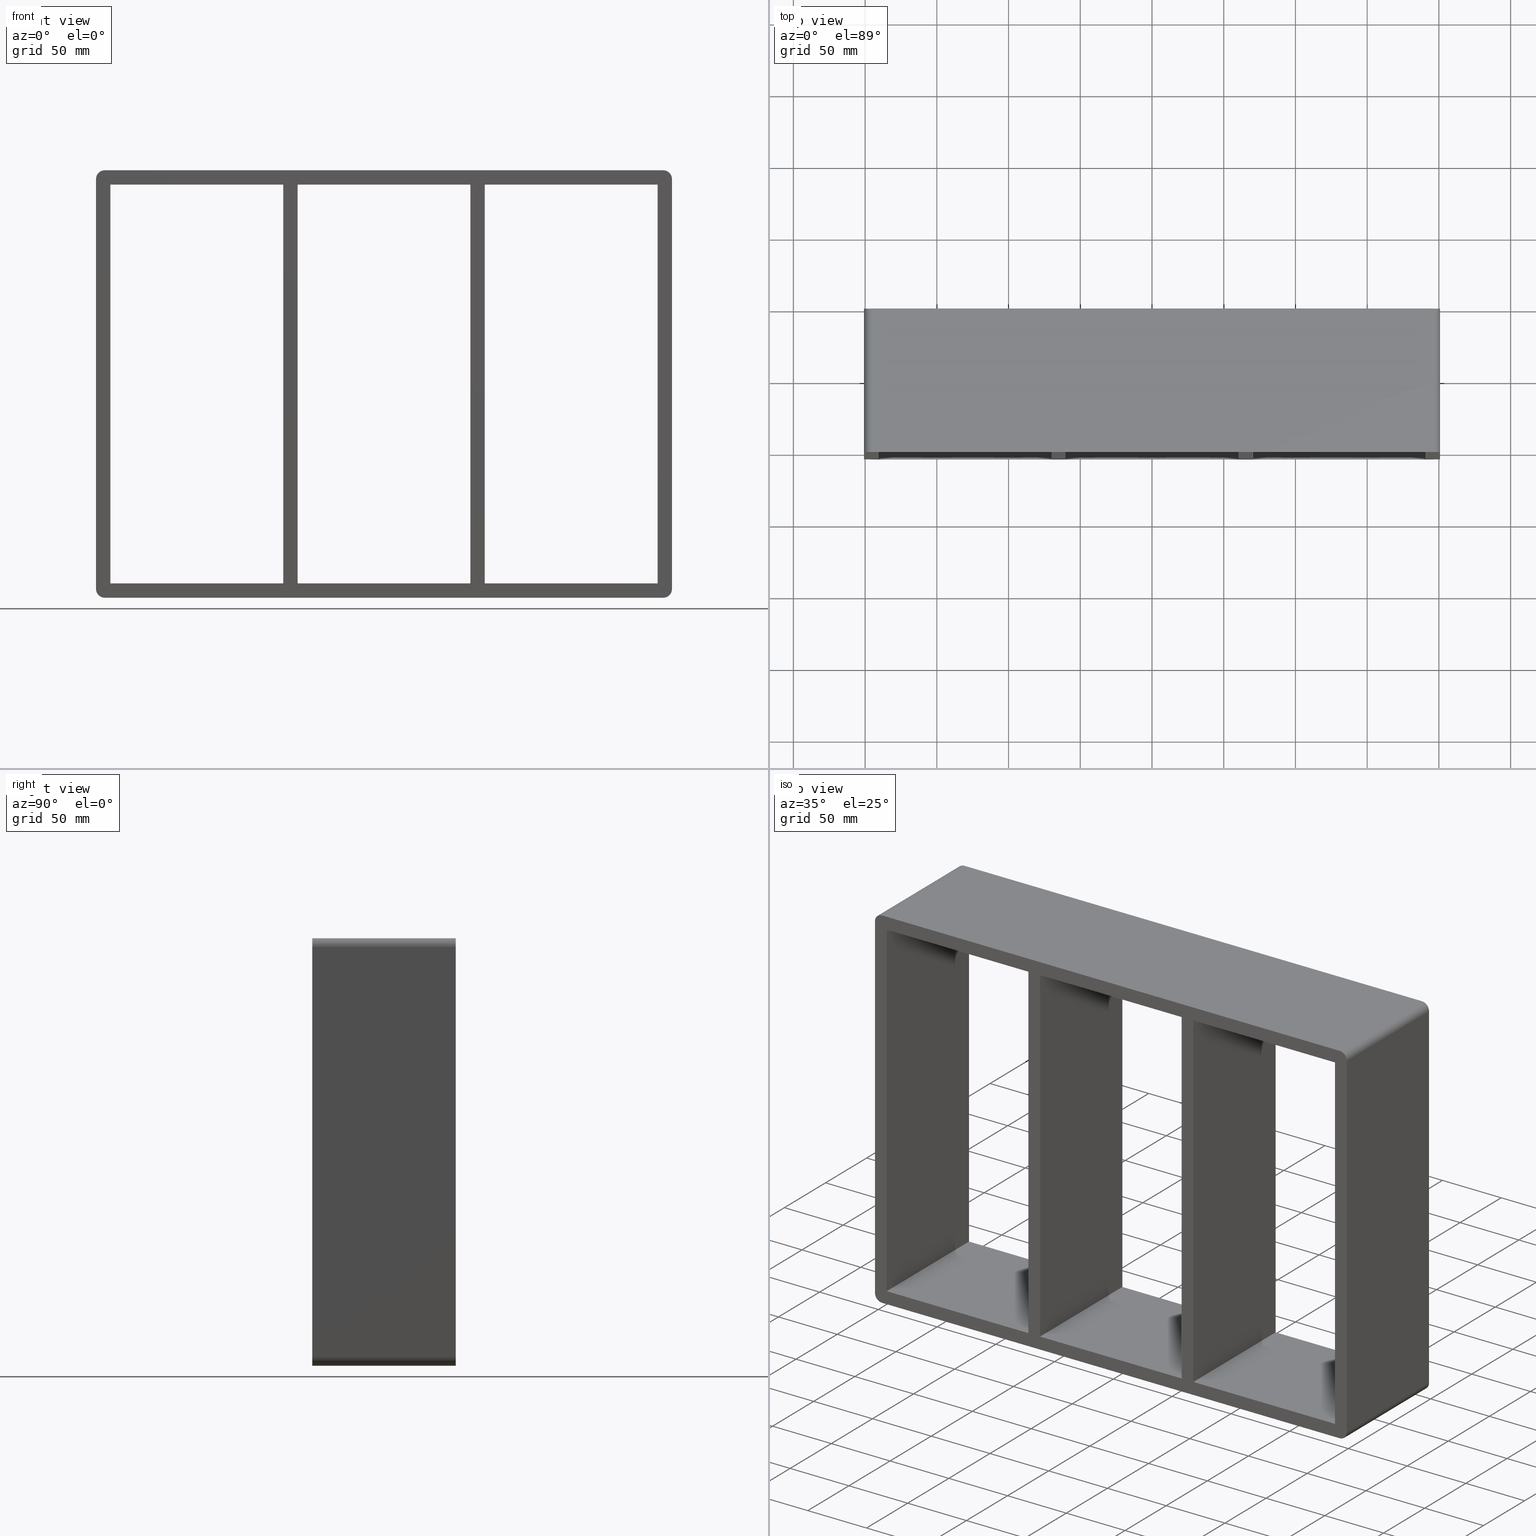
[diagram: canonical four-view strip — front | top / right | iso, engineering-drawing reading convention]
A machine part, canonical four-view strip (front | top / right | iso — engineering-drawing reading convention). The complete STEP part file that produces these views, byte-faithful:
ISO-10303-21;
HEADER;
/****************************************************************
 * Generated by software with PDElib inside                    *
 * PDElib Version v51a, created Wed 11/30/2011                  *
 * ITI Transcendata (http://www.transcendata.com/)              *
 ****************************************************************/
FILE_DESCRIPTION((''),'2;1');
FILE_NAME('C:\\RoxtecConfigurator\\CreatedFiles\\STEP\\SK8X3.stp','2013-01-29T16:25:01',(''),(''),'Autodesk Inventor 2013','Autodesk Inventor 2013','');
FILE_SCHEMA(('AUTOMOTIVE_DESIGN { 1 0 10303 214 1 1 1 1 }'));
ENDSEC;
DATA;
#5=APPLICATION_CONTEXT('automotive design');
#6=APPLICATION_PROTOCOL_DEFINITION('International Standard','automotive_design',2001,#5);
#7=PRODUCT_CONTEXT('',#5,'mechanical');
#8=PRODUCT('roxtec S_SF_G','roxtec S_SF_G',$,(#7));
#9=PRODUCT_RELATED_PRODUCT_CATEGORY('part',$,(#8));
#10=PRODUCT_DEFINITION_FORMATION('',$,#8);
#11=PRODUCT_DEFINITION_CONTEXT('part definition',#5,'design');
#12=PRODUCT_DEFINITION('',$,#10,#11);
#18=(NAMED_UNIT(*)PLANE_ANGLE_UNIT()SI_UNIT($,.RADIAN.));
#19=DIMENSIONAL_EXPONENTS(0.0,0.0,0.0,0.0,0.0,0.0,0.0);
#20=PLANE_ANGLE_MEASURE_WITH_UNIT(PLANE_ANGLE_MEASURE(0.0174532925),#18);
#24=(CONVERSION_BASED_UNIT('DEGREE',#20)NAMED_UNIT(#19)PLANE_ANGLE_UNIT());
#28=(NAMED_UNIT(*)SI_UNIT($,.STERADIAN.)SOLID_ANGLE_UNIT());
#32=(LENGTH_UNIT()NAMED_UNIT(*)SI_UNIT(.MILLI.,.METRE.));
#34=UNCERTAINTY_MEASURE_WITH_UNIT(LENGTH_MEASURE(0.01),#32,'DISTANCE_ACCURACY_VALUE','');
#36=(GEOMETRIC_REPRESENTATION_CONTEXT(3)GLOBAL_UNCERTAINTY_ASSIGNED_CONTEXT((#34))GLOBAL_UNIT_ASSIGNED_CONTEXT((#24,#28,#32))REPRESENTATION_CONTEXT('None','None'));
#37=AXIS2_PLACEMENT_3D('',#38,#39,#40);
#38=CARTESIAN_POINT('',(0.0,0.0,0.0));
#39=DIRECTION('',(0.0,0.0,1.0));
#40=DIRECTION('',(1.0,0.0,0.0));
#41=SHAPE_REPRESENTATION('',(#37),#36);
#42=PRODUCT_DEFINITION_SHAPE('','',#12);
#43=SHAPE_DEFINITION_REPRESENTATION(#42,#41);
#49=(NAMED_UNIT(*)PLANE_ANGLE_UNIT()SI_UNIT($,.RADIAN.));
#50=DIMENSIONAL_EXPONENTS(0.0,0.0,0.0,0.0,0.0,0.0,0.0);
#51=PLANE_ANGLE_MEASURE_WITH_UNIT(PLANE_ANGLE_MEASURE(0.0174532925),#49);
#55=(CONVERSION_BASED_UNIT('DEGREE',#51)NAMED_UNIT(#50)PLANE_ANGLE_UNIT());
#59=(NAMED_UNIT(*)SI_UNIT($,.STERADIAN.)SOLID_ANGLE_UNIT());
#63=(LENGTH_UNIT()NAMED_UNIT(*)SI_UNIT(.MILLI.,.METRE.));
#65=UNCERTAINTY_MEASURE_WITH_UNIT(LENGTH_MEASURE(0.000001),#63,'DISTANCE_ACCURACY_VALUE','');
#67=(GEOMETRIC_REPRESENTATION_CONTEXT(3)GLOBAL_UNCERTAINTY_ASSIGNED_CONTEXT((#65))GLOBAL_UNIT_ASSIGNED_CONTEXT((#55,#59,#63))REPRESENTATION_CONTEXT('','3D'));
#68=CARTESIAN_POINT('',(60.24999999998407,-3.0,-139.0));
#69=DIRECTION('',(-1.0,0.0,0.0));
#70=DIRECTION('',(0.0,0.0,1.0));
#71=AXIS2_PLACEMENT_3D('',#68,#69,#70);
#72=PLANE('',#71);
#73=CARTESIAN_POINT('',(60.24999999998407,-3.0,-139.0));
#74=VERTEX_POINT('',#73);
#75=CARTESIAN_POINT('',(60.249999999983999,-3.0,139.0));
#76=VERTEX_POINT('',#75);
#77=CARTESIAN_POINT('',(60.24999999998407,-3.0,-139.0));
#78=DIRECTION('',(0.0,0.0,1.0));
#79=VECTOR('',#78,278.0);
#80=LINE('',#77,#79);
#81=EDGE_CURVE('',#74,#76,#80,.T.);
#82=ORIENTED_EDGE('',*,*,#81,.T.);
#83=CARTESIAN_POINT('',(60.249999999983999,97.0,139.0));
#84=VERTEX_POINT('',#83);
#85=CARTESIAN_POINT('',(60.249999999983999,97.0,139.0));
#86=DIRECTION('',(0.0,-1.0,0.0));
#87=VECTOR('',#86,100.0);
#88=LINE('',#85,#87);
#89=EDGE_CURVE('',#84,#76,#88,.T.);
#90=ORIENTED_EDGE('',*,*,#89,.F.);
#91=CARTESIAN_POINT('',(60.24999999998407,97.0,-139.0));
#92=VERTEX_POINT('',#91);
#93=CARTESIAN_POINT('',(60.24999999998407,97.0,-139.0));
#94=DIRECTION('',(0.0,0.0,1.0));
#95=VECTOR('',#94,278.0);
#96=LINE('',#93,#95);
#97=EDGE_CURVE('',#92,#84,#96,.T.);
#98=ORIENTED_EDGE('',*,*,#97,.F.);
#99=CARTESIAN_POINT('',(60.24999999998407,-3.0,-139.0));
#100=DIRECTION('',(0.0,1.0,0.0));
#101=VECTOR('',#100,100.0);
#102=LINE('',#99,#101);
#103=EDGE_CURVE('',#74,#92,#102,.T.);
#104=ORIENTED_EDGE('',*,*,#103,.F.);
#105=EDGE_LOOP('',(#82,#90,#98,#104));
#106=FACE_OUTER_BOUND('',#105,.T.);
#107=ADVANCED_FACE('',(#106),#72,.T.);
#108=CARTESIAN_POINT('',(70.249999999994543,-3.0,139.0));
#109=DIRECTION('',(1.0,0.0,0.0));
#110=DIRECTION('',(0.0,0.0,-1.0));
#111=AXIS2_PLACEMENT_3D('',#108,#109,#110);
#112=PLANE('',#111);
#113=CARTESIAN_POINT('',(70.249999999994543,-3.0,139.0));
#114=VERTEX_POINT('',#113);
#115=CARTESIAN_POINT('',(70.249999999994543,-3.0,-138.99999999999804));
#116=VERTEX_POINT('',#115);
#117=CARTESIAN_POINT('',(70.249999999994543,-3.0,139.0));
#118=DIRECTION('',(0.0,0.0,-1.0));
#119=VECTOR('',#118,277.99999999999801);
#120=LINE('',#117,#119);
#121=EDGE_CURVE('',#114,#116,#120,.T.);
#122=ORIENTED_EDGE('',*,*,#121,.T.);
#123=CARTESIAN_POINT('',(70.249999999994543,97.0,-138.99999999999804));
#124=VERTEX_POINT('',#123);
#125=CARTESIAN_POINT('',(70.249999999994543,97.0,-139.0));
#126=DIRECTION('',(0.0,-1.0,0.0));
#127=VECTOR('',#126,100.0);
#128=LINE('',#125,#127);
#129=EDGE_CURVE('',#124,#116,#128,.T.);
#130=ORIENTED_EDGE('',*,*,#129,.F.);
#131=CARTESIAN_POINT('',(70.249999999994543,97.0,139.0));
#132=VERTEX_POINT('',#131);
#133=CARTESIAN_POINT('',(70.249999999994543,97.0,139.0));
#134=DIRECTION('',(0.0,0.0,-1.0));
#135=VECTOR('',#134,277.99999999999801);
#136=LINE('',#133,#135);
#137=EDGE_CURVE('',#132,#124,#136,.T.);
#138=ORIENTED_EDGE('',*,*,#137,.F.);
#139=CARTESIAN_POINT('',(70.249999999994543,-3.0,139.0));
#140=DIRECTION('',(0.0,1.0,0.0));
#141=VECTOR('',#140,100.0);
#142=LINE('',#139,#141);
#143=EDGE_CURVE('',#114,#132,#142,.T.);
#144=ORIENTED_EDGE('',*,*,#143,.F.);
#145=EDGE_LOOP('',(#122,#130,#138,#144));
#146=FACE_OUTER_BOUND('',#145,.T.);
#147=ADVANCED_FACE('',(#146),#112,.T.);
#148=CARTESIAN_POINT('',(190.75,0.0,-139.0));
#149=DIRECTION('',(0.0,0.0,-1.0));
#150=DIRECTION('',(-1.0,0.0,0.0));
#151=AXIS2_PLACEMENT_3D('',#148,#149,#150);
#152=PLANE('',#151);
#153=ORIENTED_EDGE('',*,*,#103,.T.);
#154=CARTESIAN_POINT('',(-60.250000000005457,97.0,-138.99999999999804));
#155=VERTEX_POINT('',#154);
#156=CARTESIAN_POINT('',(-60.250000000005457,97.0,-139.0));
#157=DIRECTION('',(1.0,0.0,0.0));
#158=VECTOR('',#157,120.49999999998953);
#159=LINE('',#156,#158);
#160=EDGE_CURVE('',#155,#92,#159,.T.);
#161=ORIENTED_EDGE('',*,*,#160,.F.);
#162=CARTESIAN_POINT('',(-60.250000000005457,-3.0,-138.99999999999804));
#163=VERTEX_POINT('',#162);
#164=CARTESIAN_POINT('',(-60.250000000005457,97.0,-139.0));
#165=DIRECTION('',(0.0,-1.0,0.0));
#166=VECTOR('',#165,100.0);
#167=LINE('',#164,#166);
#168=EDGE_CURVE('',#155,#163,#167,.T.);
#169=ORIENTED_EDGE('',*,*,#168,.T.);
#170=CARTESIAN_POINT('',(60.24999999998407,-3.0,-139.0));
#171=DIRECTION('',(-1.0,0.0,0.0));
#172=VECTOR('',#171,120.49999999998953);
#173=LINE('',#170,#172);
#174=EDGE_CURVE('',#74,#163,#173,.T.);
#175=ORIENTED_EDGE('',*,*,#174,.F.);
#176=EDGE_LOOP('',(#153,#161,#169,#175));
#177=FACE_OUTER_BOUND('',#176,.T.);
#178=ADVANCED_FACE('',(#177),#152,.F.);
#179=CARTESIAN_POINT('',(190.75,0.0,-139.0));
#180=DIRECTION('',(0.0,0.0,-1.0));
#181=DIRECTION('',(-1.0,0.0,0.0));
#182=AXIS2_PLACEMENT_3D('',#179,#180,#181);
#183=PLANE('',#182);
#184=ORIENTED_EDGE('',*,*,#129,.T.);
#185=CARTESIAN_POINT('',(190.75,-3.0,-139.0));
#186=VERTEX_POINT('',#185);
#187=CARTESIAN_POINT('',(190.75,-3.0,-139.0));
#188=DIRECTION('',(-1.0,0.0,0.0));
#189=VECTOR('',#188,120.50000000000544);
#190=LINE('',#187,#189);
#191=EDGE_CURVE('',#186,#116,#190,.T.);
#192=ORIENTED_EDGE('',*,*,#191,.F.);
#193=CARTESIAN_POINT('',(190.75,97.0,-139.0));
#194=VERTEX_POINT('',#193);
#195=CARTESIAN_POINT('',(190.75,97.0,-139.0));
#196=DIRECTION('',(0.0,-1.0,0.0));
#197=VECTOR('',#196,100.0);
#198=LINE('',#195,#197);
#199=EDGE_CURVE('',#194,#186,#198,.T.);
#200=ORIENTED_EDGE('',*,*,#199,.F.);
#201=CARTESIAN_POINT('',(70.249999999994557,97.0,-139.0));
#202=DIRECTION('',(1.0,0.0,0.0));
#203=VECTOR('',#202,120.50000000000544);
#204=LINE('',#201,#203);
#205=EDGE_CURVE('',#124,#194,#204,.T.);
#206=ORIENTED_EDGE('',*,*,#205,.F.);
#207=EDGE_LOOP('',(#184,#192,#200,#206));
#208=FACE_OUTER_BOUND('',#207,.T.);
#209=ADVANCED_FACE('',(#208),#183,.F.);
#210=CARTESIAN_POINT('',(-190.75000000000003,0.0,139.0));
#211=DIRECTION('',(0.0,0.0,1.0));
#212=DIRECTION('',(1.0,0.0,0.0));
#213=AXIS2_PLACEMENT_3D('',#210,#211,#212);
#214=PLANE('',#213);
#215=ORIENTED_EDGE('',*,*,#143,.T.);
#216=CARTESIAN_POINT('',(190.75,97.0,139.0));
#217=VERTEX_POINT('',#216);
#218=CARTESIAN_POINT('',(190.75,97.0,139.0));
#219=DIRECTION('',(-1.0,0.0,0.0));
#220=VECTOR('',#219,120.50000000000544);
#221=LINE('',#218,#220);
#222=EDGE_CURVE('',#217,#132,#221,.T.);
#223=ORIENTED_EDGE('',*,*,#222,.F.);
#224=CARTESIAN_POINT('',(190.75,-3.0,139.0));
#225=VERTEX_POINT('',#224);
#226=CARTESIAN_POINT('',(190.75,-3.0,139.0));
#227=DIRECTION('',(0.0,1.0,0.0));
#228=VECTOR('',#227,100.0);
#229=LINE('',#226,#228);
#230=EDGE_CURVE('',#225,#217,#229,.T.);
#231=ORIENTED_EDGE('',*,*,#230,.F.);
#232=CARTESIAN_POINT('',(70.249999999994557,-3.0,139.0));
#233=DIRECTION('',(1.0,0.0,0.0));
#234=VECTOR('',#233,120.50000000000544);
#235=LINE('',#232,#234);
#236=EDGE_CURVE('',#114,#225,#235,.T.);
#237=ORIENTED_EDGE('',*,*,#236,.F.);
#238=EDGE_LOOP('',(#215,#223,#231,#237));
#239=FACE_OUTER_BOUND('',#238,.T.);
#240=ADVANCED_FACE('',(#239),#214,.F.);
#241=CARTESIAN_POINT('',(-190.75000000000003,0.0,139.0));
#242=DIRECTION('',(0.0,0.0,1.0));
#243=DIRECTION('',(1.0,0.0,0.0));
#244=AXIS2_PLACEMENT_3D('',#241,#242,#243);
#245=PLANE('',#244);
#246=ORIENTED_EDGE('',*,*,#89,.T.);
#247=CARTESIAN_POINT('',(-60.250000000005457,-3.0,139.0));
#248=VERTEX_POINT('',#247);
#249=CARTESIAN_POINT('',(-60.250000000005457,-3.0,139.0));
#250=DIRECTION('',(1.0,0.0,0.0));
#251=VECTOR('',#250,120.49999999998947);
#252=LINE('',#249,#251);
#253=EDGE_CURVE('',#248,#76,#252,.T.);
#254=ORIENTED_EDGE('',*,*,#253,.F.);
#255=CARTESIAN_POINT('',(-60.250000000005457,97.0,139.0));
#256=VERTEX_POINT('',#255);
#257=CARTESIAN_POINT('',(-60.250000000005457,-3.0,139.0));
#258=DIRECTION('',(0.0,1.0,0.0));
#259=VECTOR('',#258,100.0);
#260=LINE('',#257,#259);
#261=EDGE_CURVE('',#248,#256,#260,.T.);
#262=ORIENTED_EDGE('',*,*,#261,.T.);
#263=CARTESIAN_POINT('',(60.249999999984013,97.0,139.0));
#264=DIRECTION('',(-1.0,0.0,0.0));
#265=VECTOR('',#264,120.49999999998947);
#266=LINE('',#263,#265);
#267=EDGE_CURVE('',#84,#256,#266,.T.);
#268=ORIENTED_EDGE('',*,*,#267,.F.);
#269=EDGE_LOOP('',(#246,#254,#262,#268));
#270=FACE_OUTER_BOUND('',#269,.T.);
#271=ADVANCED_FACE('',(#270),#245,.F.);
#272=CARTESIAN_POINT('',(-70.250000000015945,-3.0,-139.0));
#273=DIRECTION('',(-1.0,0.0,0.0));
#274=DIRECTION('',(0.0,0.0,1.0));
#275=AXIS2_PLACEMENT_3D('',#272,#273,#274);
#276=PLANE('',#275);
#277=CARTESIAN_POINT('',(-70.250000000015945,-3.0,-139.0));
#278=VERTEX_POINT('',#277);
#279=CARTESIAN_POINT('',(-70.250000000016001,-3.0,139.0));
#280=VERTEX_POINT('',#279);
#281=CARTESIAN_POINT('',(-70.250000000015945,-3.0,-139.0));
#282=DIRECTION('',(0.0,0.0,1.0));
#283=VECTOR('',#282,278.0);
#284=LINE('',#281,#283);
#285=EDGE_CURVE('',#278,#280,#284,.T.);
#286=ORIENTED_EDGE('',*,*,#285,.T.);
#287=CARTESIAN_POINT('',(-70.250000000016001,97.0,139.0));
#288=VERTEX_POINT('',#287);
#289=CARTESIAN_POINT('',(-70.250000000016001,97.0,139.0));
#290=DIRECTION('',(0.0,-1.0,0.0));
#291=VECTOR('',#290,100.0);
#292=LINE('',#289,#291);
#293=EDGE_CURVE('',#288,#280,#292,.T.);
#294=ORIENTED_EDGE('',*,*,#293,.F.);
#295=CARTESIAN_POINT('',(-70.250000000015945,97.0,-139.0));
#296=VERTEX_POINT('',#295);
#297=CARTESIAN_POINT('',(-70.250000000015945,97.0,-139.0));
#298=DIRECTION('',(0.0,0.0,1.0));
#299=VECTOR('',#298,278.0);
#300=LINE('',#297,#299);
#301=EDGE_CURVE('',#296,#288,#300,.T.);
#302=ORIENTED_EDGE('',*,*,#301,.F.);
#303=CARTESIAN_POINT('',(-70.250000000015945,-3.0,-139.0));
#304=DIRECTION('',(0.0,1.0,0.0));
#305=VECTOR('',#304,100.0);
#306=LINE('',#303,#305);
#307=EDGE_CURVE('',#278,#296,#306,.T.);
#308=ORIENTED_EDGE('',*,*,#307,.F.);
#309=EDGE_LOOP('',(#286,#294,#302,#308));
#310=FACE_OUTER_BOUND('',#309,.T.);
#311=ADVANCED_FACE('',(#310),#276,.T.);
#312=CARTESIAN_POINT('',(-60.250000000005457,-3.0,139.0));
#313=DIRECTION('',(1.0,0.0,0.0));
#314=DIRECTION('',(0.0,0.0,-1.0));
#315=AXIS2_PLACEMENT_3D('',#312,#313,#314);
#316=PLANE('',#315);
#317=CARTESIAN_POINT('',(-60.250000000005457,-3.0,139.0));
#318=DIRECTION('',(0.0,0.0,-1.0));
#319=VECTOR('',#318,277.99999999999801);
#320=LINE('',#317,#319);
#321=EDGE_CURVE('',#248,#163,#320,.T.);
#322=ORIENTED_EDGE('',*,*,#321,.T.);
#323=ORIENTED_EDGE('',*,*,#168,.F.);
#324=CARTESIAN_POINT('',(-60.250000000005457,97.0,139.0));
#325=DIRECTION('',(0.0,0.0,-1.0));
#326=VECTOR('',#325,277.99999999999801);
#327=LINE('',#324,#326);
#328=EDGE_CURVE('',#256,#155,#327,.T.);
#329=ORIENTED_EDGE('',*,*,#328,.F.);
#330=ORIENTED_EDGE('',*,*,#261,.F.);
#331=EDGE_LOOP('',(#322,#323,#329,#330));
#332=FACE_OUTER_BOUND('',#331,.T.);
#333=ADVANCED_FACE('',(#332),#316,.T.);
#334=CARTESIAN_POINT('',(190.75,0.0,-139.0));
#335=DIRECTION('',(0.0,0.0,-1.0));
#336=DIRECTION('',(-1.0,0.0,0.0));
#337=AXIS2_PLACEMENT_3D('',#334,#335,#336);
#338=PLANE('',#337);
#339=ORIENTED_EDGE('',*,*,#307,.T.);
#340=CARTESIAN_POINT('',(-190.75000000000006,97.0,-139.0));
#341=VERTEX_POINT('',#340);
#342=CARTESIAN_POINT('',(-190.75000000000006,97.0,-139.0));
#343=DIRECTION('',(1.0,0.0,0.0));
#344=VECTOR('',#343,120.49999999998414);
#345=LINE('',#342,#344);
#346=EDGE_CURVE('',#341,#296,#345,.T.);
#347=ORIENTED_EDGE('',*,*,#346,.F.);
#348=CARTESIAN_POINT('',(-190.75000000000006,-3.0,-139.0));
#349=VERTEX_POINT('',#348);
#350=CARTESIAN_POINT('',(-190.75000000000003,-3.0,-139.0));
#351=DIRECTION('',(0.0,1.0,0.0));
#352=VECTOR('',#351,100.0);
#353=LINE('',#350,#352);
#354=EDGE_CURVE('',#349,#341,#353,.T.);
#355=ORIENTED_EDGE('',*,*,#354,.F.);
#356=CARTESIAN_POINT('',(-70.250000000015916,-3.0,-139.0));
#357=DIRECTION('',(-1.0,0.0,0.0));
#358=VECTOR('',#357,120.49999999998414);
#359=LINE('',#356,#358);
#360=EDGE_CURVE('',#278,#349,#359,.T.);
#361=ORIENTED_EDGE('',*,*,#360,.F.);
#362=EDGE_LOOP('',(#339,#347,#355,#361));
#363=FACE_OUTER_BOUND('',#362,.T.);
#364=ADVANCED_FACE('',(#363),#338,.F.);
#365=CARTESIAN_POINT('',(-190.75000000000003,0.0,139.0));
#366=DIRECTION('',(0.0,0.0,1.0));
#367=DIRECTION('',(1.0,0.0,0.0));
#368=AXIS2_PLACEMENT_3D('',#365,#366,#367);
#369=PLANE('',#368);
#370=ORIENTED_EDGE('',*,*,#293,.T.);
#371=CARTESIAN_POINT('',(-190.75000000000006,-3.0,139.0));
#372=VERTEX_POINT('',#371);
#373=CARTESIAN_POINT('',(-190.75000000000006,-3.0,139.0));
#374=DIRECTION('',(1.0,0.0,0.0));
#375=VECTOR('',#374,120.49999999998406);
#376=LINE('',#373,#375);
#377=EDGE_CURVE('',#372,#280,#376,.T.);
#378=ORIENTED_EDGE('',*,*,#377,.F.);
#379=CARTESIAN_POINT('',(-190.75000000000006,97.0,139.0));
#380=VERTEX_POINT('',#379);
#381=CARTESIAN_POINT('',(-190.75000000000003,-3.0,139.0));
#382=DIRECTION('',(0.0,1.0,0.0));
#383=VECTOR('',#382,100.0);
#384=LINE('',#381,#383);
#385=EDGE_CURVE('',#372,#380,#384,.T.);
#386=ORIENTED_EDGE('',*,*,#385,.T.);
#387=CARTESIAN_POINT('',(-70.250000000016001,97.0,139.0));
#388=DIRECTION('',(-1.0,0.0,0.0));
#389=VECTOR('',#388,120.49999999998406);
#390=LINE('',#387,#389);
#391=EDGE_CURVE('',#288,#380,#390,.T.);
#392=ORIENTED_EDGE('',*,*,#391,.F.);
#393=EDGE_LOOP('',(#370,#378,#386,#392));
#394=FACE_OUTER_BOUND('',#393,.T.);
#395=ADVANCED_FACE('',(#394),#369,.F.);
#396=CARTESIAN_POINT('',(190.75,0.0,139.0));
#397=DIRECTION('',(1.0,0.0,0.0));
#398=DIRECTION('',(0.0,0.0,-1.0));
#399=AXIS2_PLACEMENT_3D('',#396,#397,#398);
#400=PLANE('',#399);
#401=ORIENTED_EDGE('',*,*,#199,.T.);
#402=CARTESIAN_POINT('',(190.75,-3.0,139.0));
#403=DIRECTION('',(0.0,0.0,-1.0));
#404=VECTOR('',#403,278.0);
#405=LINE('',#402,#404);
#406=EDGE_CURVE('',#225,#186,#405,.T.);
#407=ORIENTED_EDGE('',*,*,#406,.F.);
#408=ORIENTED_EDGE('',*,*,#230,.T.);
#409=CARTESIAN_POINT('',(190.75,97.0,-139.0));
#410=DIRECTION('',(0.0,0.0,1.0));
#411=VECTOR('',#410,278.0);
#412=LINE('',#409,#411);
#413=EDGE_CURVE('',#194,#217,#412,.T.);
#414=ORIENTED_EDGE('',*,*,#413,.F.);
#415=EDGE_LOOP('',(#401,#407,#408,#414));
#416=FACE_OUTER_BOUND('',#415,.T.);
#417=ADVANCED_FACE('',(#416),#400,.F.);
#418=CARTESIAN_POINT('',(-190.75000000000003,0.0,-139.0));
#419=DIRECTION('',(-1.0,0.0,0.0));
#420=DIRECTION('',(0.0,0.0,1.0));
#421=AXIS2_PLACEMENT_3D('',#418,#419,#420);
#422=PLANE('',#421);
#423=ORIENTED_EDGE('',*,*,#385,.F.);
#424=CARTESIAN_POINT('',(-190.75000000000003,-3.0,-139.0));
#425=DIRECTION('',(0.0,0.0,1.0));
#426=VECTOR('',#425,278.0);
#427=LINE('',#424,#426);
#428=EDGE_CURVE('',#349,#372,#427,.T.);
#429=ORIENTED_EDGE('',*,*,#428,.F.);
#430=ORIENTED_EDGE('',*,*,#354,.T.);
#431=CARTESIAN_POINT('',(-190.75000000000003,97.0,139.0));
#432=DIRECTION('',(0.0,0.0,-1.0));
#433=VECTOR('',#432,278.0);
#434=LINE('',#431,#433);
#435=EDGE_CURVE('',#380,#341,#434,.T.);
#436=ORIENTED_EDGE('',*,*,#435,.F.);
#437=EDGE_LOOP('',(#423,#429,#430,#436));
#438=FACE_OUTER_BOUND('',#437,.T.);
#439=ADVANCED_FACE('',(#438),#422,.F.);
#440=CARTESIAN_POINT('',(0.0,-3.0,1.651722E-014));
#441=DIRECTION('',(0.0,-1.0,0.0));
#442=DIRECTION('',(0.0,0.0,-1.0));
#443=AXIS2_PLACEMENT_3D('',#440,#441,#442);
#444=PLANE('',#443);
#445=CARTESIAN_POINT('',(200.75000000000003,-3.0,-143.0));
#446=VERTEX_POINT('',#445);
#447=CARTESIAN_POINT('',(200.75000000000003,-3.0,143.0));
#448=VERTEX_POINT('',#447);
#449=CARTESIAN_POINT('',(200.75000000000003,-3.0,-142.99999999999997));
#450=DIRECTION('',(0.0,0.0,1.0));
#451=VECTOR('',#450,286.0);
#452=LINE('',#449,#451);
#453=EDGE_CURVE('',#446,#448,#452,.T.);
#454=ORIENTED_EDGE('',*,*,#453,.T.);
#455=CARTESIAN_POINT('',(194.75,-3.0,149.00000000000003));
#456=VERTEX_POINT('',#455);
#457=CARTESIAN_POINT('',(194.75,-3.0,143.00000000000003));
#458=DIRECTION('',(0.0,-1.0,0.0));
#459=DIRECTION('',(0.0,0.0,1.0));
#460=AXIS2_PLACEMENT_3D('',#457,#458,#459);
#461=CIRCLE('',#460,6.000000000000001);
#462=EDGE_CURVE('',#448,#456,#461,.T.);
#463=ORIENTED_EDGE('',*,*,#462,.T.);
#464=CARTESIAN_POINT('',(-194.75,-3.0,149.00000000000003));
#465=VERTEX_POINT('',#464);
#466=CARTESIAN_POINT('',(194.75,-3.0,149.00000000000003));
#467=DIRECTION('',(-1.0,0.0,0.0));
#468=VECTOR('',#467,389.5);
#469=LINE('',#466,#468);
#470=EDGE_CURVE('',#456,#465,#469,.T.);
#471=ORIENTED_EDGE('',*,*,#470,.T.);
#472=CARTESIAN_POINT('',(-200.75000000000003,-3.0,143.0));
#473=VERTEX_POINT('',#472);
#474=CARTESIAN_POINT('',(-194.75,-3.0,143.00000000000003));
#475=DIRECTION('',(0.0,-1.0,0.0));
#476=DIRECTION('',(-1.0,0.0,0.0));
#477=AXIS2_PLACEMENT_3D('',#474,#475,#476);
#478=CIRCLE('',#477,6.000000000000001);
#479=EDGE_CURVE('',#465,#473,#478,.T.);
#480=ORIENTED_EDGE('',*,*,#479,.T.);
#481=CARTESIAN_POINT('',(-200.75000000000003,-3.0,-143.0));
#482=VERTEX_POINT('',#481);
#483=CARTESIAN_POINT('',(-200.75000000000003,-3.0,143.0));
#484=DIRECTION('',(0.0,0.0,-1.0));
#485=VECTOR('',#484,286.0);
#486=LINE('',#483,#485);
#487=EDGE_CURVE('',#473,#482,#486,.T.);
#488=ORIENTED_EDGE('',*,*,#487,.T.);
#489=CARTESIAN_POINT('',(-194.75,-3.0,-149.0));
#490=VERTEX_POINT('',#489);
#491=CARTESIAN_POINT('',(-194.75,-3.0,-143.0));
#492=DIRECTION('',(0.0,-1.0,0.0));
#493=DIRECTION('',(0.0,0.0,-1.0));
#494=AXIS2_PLACEMENT_3D('',#491,#492,#493);
#495=CIRCLE('',#494,6.000000000000001);
#496=EDGE_CURVE('',#482,#490,#495,.T.);
#497=ORIENTED_EDGE('',*,*,#496,.T.);
#498=CARTESIAN_POINT('',(194.75,-3.0,-149.0));
#499=VERTEX_POINT('',#498);
#500=CARTESIAN_POINT('',(-194.75,-3.0,-149.0));
#501=DIRECTION('',(1.0,0.0,0.0));
#502=VECTOR('',#501,389.5);
#503=LINE('',#500,#502);
#504=EDGE_CURVE('',#490,#499,#503,.T.);
#505=ORIENTED_EDGE('',*,*,#504,.T.);
#506=CARTESIAN_POINT('',(194.75,-3.0,-143.0));
#507=DIRECTION('',(0.0,-1.0,0.0));
#508=DIRECTION('',(1.0,0.0,0.0));
#509=AXIS2_PLACEMENT_3D('',#506,#507,#508);
#510=CIRCLE('',#509,6.000000000000001);
#511=EDGE_CURVE('',#499,#446,#510,.T.);
#512=ORIENTED_EDGE('',*,*,#511,.T.);
#513=EDGE_LOOP('',(#454,#463,#471,#480,#488,#497,#505,#512));
#514=FACE_OUTER_BOUND('',#513,.T.);
#515=ORIENTED_EDGE('',*,*,#174,.T.);
#516=ORIENTED_EDGE('',*,*,#321,.F.);
#517=ORIENTED_EDGE('',*,*,#253,.T.);
#518=ORIENTED_EDGE('',*,*,#81,.F.);
#519=EDGE_LOOP('',(#515,#516,#517,#518));
#520=FACE_BOUND('',#519,.T.);
#521=ORIENTED_EDGE('',*,*,#360,.T.);
#522=ORIENTED_EDGE('',*,*,#428,.T.);
#523=ORIENTED_EDGE('',*,*,#377,.T.);
#524=ORIENTED_EDGE('',*,*,#285,.F.);
#525=EDGE_LOOP('',(#521,#522,#523,#524));
#526=FACE_BOUND('',#525,.T.);
#527=ORIENTED_EDGE('',*,*,#121,.F.);
#528=ORIENTED_EDGE('',*,*,#236,.T.);
#529=ORIENTED_EDGE('',*,*,#406,.T.);
#530=ORIENTED_EDGE('',*,*,#191,.T.);
#531=EDGE_LOOP('',(#527,#528,#529,#530));
#532=FACE_BOUND('',#531,.T.);
#533=ADVANCED_FACE('',(#514,#520,#526,#532),#444,.T.);
#534=CARTESIAN_POINT('',(194.75,0.0,143.00000000000003));
#535=DIRECTION('',(0.0,1.0,0.0));
#536=DIRECTION('',(0.0,0.0,1.0));
#537=AXIS2_PLACEMENT_3D('',#534,#535,#536);
#538=CYLINDRICAL_SURFACE('',#537,6.000000000000001);
#539=CARTESIAN_POINT('',(200.75000000000003,97.0,143.0));
#540=VERTEX_POINT('',#539);
#541=CARTESIAN_POINT('',(200.75000000000003,97.0,143.0));
#542=DIRECTION('',(0.0,-1.0,0.0));
#543=VECTOR('',#542,100.0);
#544=LINE('',#541,#543);
#545=EDGE_CURVE('',#540,#448,#544,.T.);
#546=ORIENTED_EDGE('',*,*,#545,.F.);
#547=CARTESIAN_POINT('',(194.75,97.0,149.00000000000003));
#548=VERTEX_POINT('',#547);
#549=CARTESIAN_POINT('',(194.75,97.0,143.00000000000003));
#550=DIRECTION('',(0.0,1.0,0.0));
#551=DIRECTION('',(0.0,0.0,1.0));
#552=AXIS2_PLACEMENT_3D('',#549,#550,#551);
#553=CIRCLE('',#552,6.000000000000001);
#554=EDGE_CURVE('',#548,#540,#553,.T.);
#555=ORIENTED_EDGE('',*,*,#554,.F.);
#556=CARTESIAN_POINT('',(194.75,-3.0,149.00000000000003));
#557=DIRECTION('',(0.0,1.0,0.0));
#558=VECTOR('',#557,100.0);
#559=LINE('',#556,#558);
#560=EDGE_CURVE('',#456,#548,#559,.T.);
#561=ORIENTED_EDGE('',*,*,#560,.F.);
#562=ORIENTED_EDGE('',*,*,#462,.F.);
#563=EDGE_LOOP('',(#546,#555,#561,#562));
#564=FACE_OUTER_BOUND('',#563,.T.);
#565=ADVANCED_FACE('',(#564),#538,.T.);
#566=CARTESIAN_POINT('',(-194.75,0.0,149.00000000000003));
#567=DIRECTION('',(0.0,0.0,1.0));
#568=DIRECTION('',(1.0,0.0,0.0));
#569=AXIS2_PLACEMENT_3D('',#566,#567,#568);
#570=PLANE('',#569);
#571=ORIENTED_EDGE('',*,*,#560,.T.);
#572=CARTESIAN_POINT('',(-194.75,97.0,149.00000000000003));
#573=VERTEX_POINT('',#572);
#574=CARTESIAN_POINT('',(-194.75,97.0,149.00000000000003));
#575=DIRECTION('',(1.0,0.0,0.0));
#576=VECTOR('',#575,389.5);
#577=LINE('',#574,#576);
#578=EDGE_CURVE('',#573,#548,#577,.T.);
#579=ORIENTED_EDGE('',*,*,#578,.F.);
#580=CARTESIAN_POINT('',(-194.75,-3.0,149.00000000000003));
#581=DIRECTION('',(0.0,1.0,0.0));
#582=VECTOR('',#581,100.0);
#583=LINE('',#580,#582);
#584=EDGE_CURVE('',#465,#573,#583,.T.);
#585=ORIENTED_EDGE('',*,*,#584,.F.);
#586=ORIENTED_EDGE('',*,*,#470,.F.);
#587=EDGE_LOOP('',(#571,#579,#585,#586));
#588=FACE_OUTER_BOUND('',#587,.T.);
#589=ADVANCED_FACE('',(#588),#570,.T.);
#590=CARTESIAN_POINT('',(-194.75,0.0,143.00000000000003));
#591=DIRECTION('',(0.0,1.0,0.0));
#592=DIRECTION('',(-1.0,0.0,0.0));
#593=AXIS2_PLACEMENT_3D('',#590,#591,#592);
#594=CYLINDRICAL_SURFACE('',#593,6.000000000000001);
#595=ORIENTED_EDGE('',*,*,#584,.T.);
#596=CARTESIAN_POINT('',(-200.75000000000003,97.0,143.0));
#597=VERTEX_POINT('',#596);
#598=CARTESIAN_POINT('',(-194.75,97.0,143.00000000000003));
#599=DIRECTION('',(0.0,1.0,0.0));
#600=DIRECTION('',(-1.0,0.0,0.0));
#601=AXIS2_PLACEMENT_3D('',#598,#599,#600);
#602=CIRCLE('',#601,6.000000000000001);
#603=EDGE_CURVE('',#597,#573,#602,.T.);
#604=ORIENTED_EDGE('',*,*,#603,.F.);
#605=CARTESIAN_POINT('',(-200.75000000000003,-3.0,143.0));
#606=DIRECTION('',(0.0,1.0,0.0));
#607=VECTOR('',#606,100.0);
#608=LINE('',#605,#607);
#609=EDGE_CURVE('',#473,#597,#608,.T.);
#610=ORIENTED_EDGE('',*,*,#609,.F.);
#611=ORIENTED_EDGE('',*,*,#479,.F.);
#612=EDGE_LOOP('',(#595,#604,#610,#611));
#613=FACE_OUTER_BOUND('',#612,.T.);
#614=ADVANCED_FACE('',(#613),#594,.T.);
#615=CARTESIAN_POINT('',(-200.75000000000003,0.0,-143.0));
#616=DIRECTION('',(-1.0,0.0,0.0));
#617=DIRECTION('',(0.0,0.0,1.0));
#618=AXIS2_PLACEMENT_3D('',#615,#616,#617);
#619=PLANE('',#618);
#620=ORIENTED_EDGE('',*,*,#609,.T.);
#621=CARTESIAN_POINT('',(-200.75000000000003,97.0,-143.0));
#622=VERTEX_POINT('',#621);
#623=CARTESIAN_POINT('',(-200.75000000000003,97.0,-142.99999999999997));
#624=DIRECTION('',(0.0,0.0,1.0));
#625=VECTOR('',#624,286.0);
#626=LINE('',#623,#625);
#627=EDGE_CURVE('',#622,#597,#626,.T.);
#628=ORIENTED_EDGE('',*,*,#627,.F.);
#629=CARTESIAN_POINT('',(-200.75000000000003,-3.0,-143.0));
#630=DIRECTION('',(0.0,1.0,0.0));
#631=VECTOR('',#630,100.0);
#632=LINE('',#629,#631);
#633=EDGE_CURVE('',#482,#622,#632,.T.);
#634=ORIENTED_EDGE('',*,*,#633,.F.);
#635=ORIENTED_EDGE('',*,*,#487,.F.);
#636=EDGE_LOOP('',(#620,#628,#634,#635));
#637=FACE_OUTER_BOUND('',#636,.T.);
#638=ADVANCED_FACE('',(#637),#619,.T.);
#639=CARTESIAN_POINT('',(-194.75,0.0,-143.0));
#640=DIRECTION('',(0.0,1.0,0.0));
#641=DIRECTION('',(0.0,0.0,-1.0));
#642=AXIS2_PLACEMENT_3D('',#639,#640,#641);
#643=CYLINDRICAL_SURFACE('',#642,6.000000000000001);
#644=ORIENTED_EDGE('',*,*,#633,.T.);
#645=CARTESIAN_POINT('',(-194.75,97.0,-149.0));
#646=VERTEX_POINT('',#645);
#647=CARTESIAN_POINT('',(-194.75,97.0,-143.0));
#648=DIRECTION('',(0.0,1.0,0.0));
#649=DIRECTION('',(0.0,0.0,-1.0));
#650=AXIS2_PLACEMENT_3D('',#647,#648,#649);
#651=CIRCLE('',#650,6.000000000000001);
#652=EDGE_CURVE('',#646,#622,#651,.T.);
#653=ORIENTED_EDGE('',*,*,#652,.F.);
#654=CARTESIAN_POINT('',(-194.75,-3.0,-149.0));
#655=DIRECTION('',(0.0,1.0,0.0));
#656=VECTOR('',#655,100.0);
#657=LINE('',#654,#656);
#658=EDGE_CURVE('',#490,#646,#657,.T.);
#659=ORIENTED_EDGE('',*,*,#658,.F.);
#660=ORIENTED_EDGE('',*,*,#496,.F.);
#661=EDGE_LOOP('',(#644,#653,#659,#660));
#662=FACE_OUTER_BOUND('',#661,.T.);
#663=ADVANCED_FACE('',(#662),#643,.T.);
#664=CARTESIAN_POINT('',(194.75,0.0,-149.0));
#665=DIRECTION('',(0.0,0.0,-1.0));
#666=DIRECTION('',(-1.0,0.0,0.0));
#667=AXIS2_PLACEMENT_3D('',#664,#665,#666);
#668=PLANE('',#667);
#669=ORIENTED_EDGE('',*,*,#658,.T.);
#670=CARTESIAN_POINT('',(194.75,97.0,-149.0));
#671=VERTEX_POINT('',#670);
#672=CARTESIAN_POINT('',(194.75,97.0,-149.0));
#673=DIRECTION('',(-1.0,0.0,0.0));
#674=VECTOR('',#673,389.5);
#675=LINE('',#672,#674);
#676=EDGE_CURVE('',#671,#646,#675,.T.);
#677=ORIENTED_EDGE('',*,*,#676,.F.);
#678=CARTESIAN_POINT('',(194.75,-3.0,-149.0));
#679=DIRECTION('',(0.0,1.0,0.0));
#680=VECTOR('',#679,100.0);
#681=LINE('',#678,#680);
#682=EDGE_CURVE('',#499,#671,#681,.T.);
#683=ORIENTED_EDGE('',*,*,#682,.F.);
#684=ORIENTED_EDGE('',*,*,#504,.F.);
#685=EDGE_LOOP('',(#669,#677,#683,#684));
#686=FACE_OUTER_BOUND('',#685,.T.);
#687=ADVANCED_FACE('',(#686),#668,.T.);
#688=CARTESIAN_POINT('',(194.75,0.0,-143.0));
#689=DIRECTION('',(0.0,1.0,0.0));
#690=DIRECTION('',(1.0,0.0,0.0));
#691=AXIS2_PLACEMENT_3D('',#688,#689,#690);
#692=CYLINDRICAL_SURFACE('',#691,6.000000000000001);
#693=ORIENTED_EDGE('',*,*,#682,.T.);
#694=CARTESIAN_POINT('',(200.75000000000003,97.0,-143.0));
#695=VERTEX_POINT('',#694);
#696=CARTESIAN_POINT('',(194.75,97.0,-143.0));
#697=DIRECTION('',(0.0,1.0,0.0));
#698=DIRECTION('',(1.0,0.0,0.0));
#699=AXIS2_PLACEMENT_3D('',#696,#697,#698);
#700=CIRCLE('',#699,6.000000000000001);
#701=EDGE_CURVE('',#695,#671,#700,.T.);
#702=ORIENTED_EDGE('',*,*,#701,.F.);
#703=CARTESIAN_POINT('',(200.75000000000003,-3.0,-143.0));
#704=DIRECTION('',(0.0,1.0,0.0));
#705=VECTOR('',#704,100.0);
#706=LINE('',#703,#705);
#707=EDGE_CURVE('',#446,#695,#706,.T.);
#708=ORIENTED_EDGE('',*,*,#707,.F.);
#709=ORIENTED_EDGE('',*,*,#511,.F.);
#710=EDGE_LOOP('',(#693,#702,#708,#709));
#711=FACE_OUTER_BOUND('',#710,.T.);
#712=ADVANCED_FACE('',(#711),#692,.T.);
#713=CARTESIAN_POINT('',(200.75000000000003,0.0,143.0));
#714=DIRECTION('',(1.0,0.0,0.0));
#715=DIRECTION('',(0.0,0.0,-1.0));
#716=AXIS2_PLACEMENT_3D('',#713,#714,#715);
#717=PLANE('',#716);
#718=ORIENTED_EDGE('',*,*,#707,.T.);
#719=CARTESIAN_POINT('',(200.75000000000003,97.0,143.0));
#720=DIRECTION('',(0.0,0.0,-1.0));
#721=VECTOR('',#720,286.0);
#722=LINE('',#719,#721);
#723=EDGE_CURVE('',#540,#695,#722,.T.);
#724=ORIENTED_EDGE('',*,*,#723,.F.);
#725=ORIENTED_EDGE('',*,*,#545,.T.);
#726=ORIENTED_EDGE('',*,*,#453,.F.);
#727=EDGE_LOOP('',(#718,#724,#725,#726));
#728=FACE_OUTER_BOUND('',#727,.T.);
#729=ADVANCED_FACE('',(#728),#717,.T.);
#730=CARTESIAN_POINT('',(0.0,97.0,1.651722E-014));
#731=DIRECTION('',(0.0,-1.0,0.0));
#732=DIRECTION('',(0.0,0.0,-1.0));
#733=AXIS2_PLACEMENT_3D('',#730,#731,#732);
#734=PLANE('',#733);
#735=ORIENTED_EDGE('',*,*,#723,.T.);
#736=ORIENTED_EDGE('',*,*,#701,.T.);
#737=ORIENTED_EDGE('',*,*,#676,.T.);
#738=ORIENTED_EDGE('',*,*,#652,.T.);
#739=ORIENTED_EDGE('',*,*,#627,.T.);
#740=ORIENTED_EDGE('',*,*,#603,.T.);
#741=ORIENTED_EDGE('',*,*,#578,.T.);
#742=ORIENTED_EDGE('',*,*,#554,.T.);
#743=EDGE_LOOP('',(#735,#736,#737,#738,#739,#740,#741,#742));
#744=FACE_OUTER_BOUND('',#743,.T.);
#745=ORIENTED_EDGE('',*,*,#205,.T.);
#746=ORIENTED_EDGE('',*,*,#413,.T.);
#747=ORIENTED_EDGE('',*,*,#222,.T.);
#748=ORIENTED_EDGE('',*,*,#137,.T.);
#749=EDGE_LOOP('',(#745,#746,#747,#748));
#750=FACE_BOUND('',#749,.T.);
#751=ORIENTED_EDGE('',*,*,#97,.T.);
#752=ORIENTED_EDGE('',*,*,#267,.T.);
#753=ORIENTED_EDGE('',*,*,#328,.T.);
#754=ORIENTED_EDGE('',*,*,#160,.T.);
#755=EDGE_LOOP('',(#751,#752,#753,#754));
#756=FACE_BOUND('',#755,.T.);
#757=ORIENTED_EDGE('',*,*,#301,.T.);
#758=ORIENTED_EDGE('',*,*,#391,.T.);
#759=ORIENTED_EDGE('',*,*,#435,.T.);
#760=ORIENTED_EDGE('',*,*,#346,.T.);
#761=EDGE_LOOP('',(#757,#758,#759,#760));
#762=FACE_BOUND('',#761,.T.);
#763=ADVANCED_FACE('',(#744,#750,#756,#762),#734,.F.);
#764=CLOSED_SHELL('',(#107,#147,#178,#209,#240,#271,#311,#333,#364,#395,#417,#439,#533,#565,#589,#614,#638,#663,#687,#712,#729,#763));
#765=MANIFOLD_SOLID_BREP('Solid1',#764);
#766=COLOUR_RGB('Silicon Nitride - Polished',0.800000011920929,0.796078443527222,0.701960802078247);
#767=FILL_AREA_STYLE_COLOUR('Silicon Nitride - Polished',#766);
#768=FILL_AREA_STYLE('Silicon Nitride - Polished',(#767));
#769=SURFACE_STYLE_FILL_AREA(#768);
#770=SURFACE_SIDE_STYLE('Silicon Nitride - Polished',(#769));
#771=SURFACE_STYLE_USAGE(.BOTH.,#770);
#772=PRESENTATION_STYLE_ASSIGNMENT((#771));
#773=STYLED_ITEM('',(#772),#765);
#774=MECHANICAL_DESIGN_GEOMETRIC_PRESENTATION_REPRESENTATION('',(#773),#36);
#775=ADVANCED_BREP_SHAPE_REPRESENTATION('ABSR',(#765),#36);
#776=SHAPE_REPRESENTATION_RELATIONSHIP('SRR','None',#775,#41);
ENDSEC;
END-ISO-10303-21;
